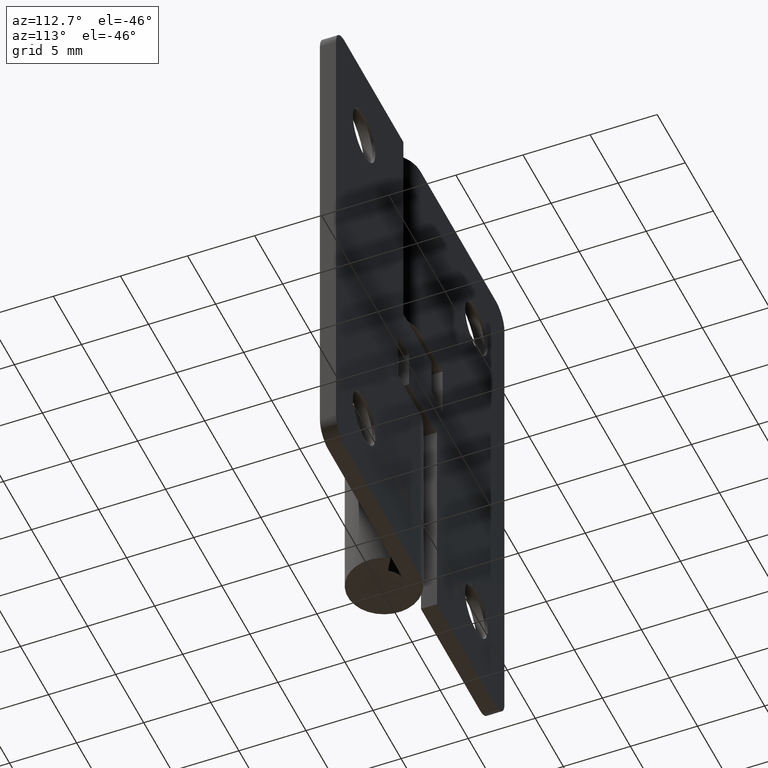
[diagram: clean part render]
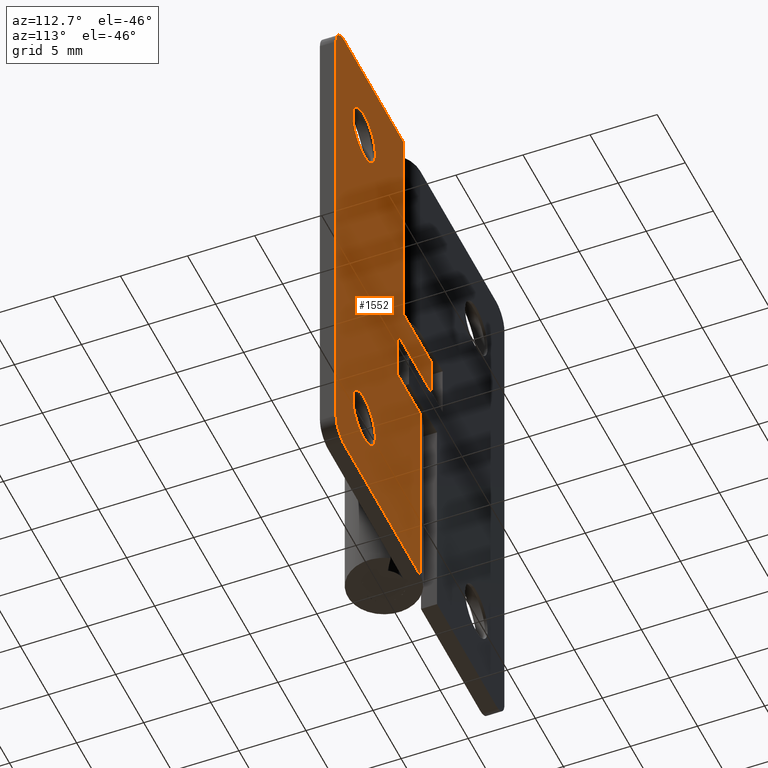
[diagram: same view with one face highlighted and labeled with its STEP entity id]
A machine part, auxiliary view. The second image highlights one B-rep face of the part: STEP entity #1552.
In plain terms, the highlighted face is a freeform B-spline surface patch.
Its self-contained STEP definition (entity closure, byte-faithful):
#476=CARTESIAN_POINT('',(8.013061622654163,2.699997000000000,34.228201412419573));
#477=VERTEX_POINT('',#476);
#483=CARTESIAN_POINT('',(10.0,2.699997000000000,36.000000000000007));
#484=VERTEX_POINT('',#483);
#485=CARTESIAN_POINT('',(8.013061622654163,2.699996999999999,34.228201412419573));
#486=CARTESIAN_POINT('',(8.216554138430254,2.699997000000000,36.0));
#487=CARTESIAN_POINT('',(10.0,2.699997000000000,36.000000000000007));
#495=(BOUNDED_CURVE()B_SPLINE_CURVE(2,(#485,#486,#487),.UNSPECIFIED.,.F.,.U.)B_SPLINE_CURVE_WITH_KNOTS((3,3),(0.269767770005124,0.500000000000000),.UNSPECIFIED.)CURVE()GEOMETRIC_REPRESENTATION_ITEM()RATIONAL_B_SPLINE_CURVE((0.957343708590816,0.730266164328807,1.0))REPRESENTATION_ITEM(''));
#496=EDGE_CURVE('',#477,#484,#495,.T.);
#498=CARTESIAN_POINT('',(11.996269596820250,2.699997000000000,34.122097079453710));
#499=VERTEX_POINT('',#498);
#500=CARTESIAN_POINT('',(10.0,2.699997000000000,36.000000000000007));
#501=CARTESIAN_POINT('',(11.881412133086229,2.699997000000000,36.000000000000014));
#502=CARTESIAN_POINT('',(11.996269596820248,2.699997000000001,34.122097079453710));
#510=(BOUNDED_CURVE()B_SPLINE_CURVE(2,(#500,#501,#502),.UNSPECIFIED.,.F.,.U.)B_SPLINE_CURVE_WITH_KNOTS((3,3),(0.500000000000000,0.739332962175587),.UNSPECIFIED.)CURVE()GEOMETRIC_REPRESENTATION_ITEM()RATIONAL_B_SPLINE_CURVE((1.0,0.719603993360936,0.976072041530934))REPRESENTATION_ITEM(''));
#511=EDGE_CURVE('',#484,#499,#510,.T.);
#610=CARTESIAN_POINT('',(10.0,2.699997000000000,32.0));
#611=VERTEX_POINT('',#610);
#612=CARTESIAN_POINT('',(11.996269596820252,2.699997000000000,34.122097079453724));
#613=CARTESIAN_POINT('',(12.000000000000004,2.699997000000000,34.061105526982260));
#614=CARTESIAN_POINT('',(12.0,2.699997000000000,34.0));
#615=CARTESIAN_POINT('',(12.0,2.699997000000000,31.999999999999996));
#616=CARTESIAN_POINT('',(10.0,2.699997000000000,32.0));
#624=(BOUNDED_CURVE()B_SPLINE_CURVE(2,(#612,#613,#614,#615,#616),.UNSPECIFIED.,.F.,.U.)B_SPLINE_CURVE_WITH_KNOTS((3,2,3),(0.739332962175586,0.750000000000000,1.0),.UNSPECIFIED.)CURVE()GEOMETRIC_REPRESENTATION_ITEM()RATIONAL_B_SPLINE_CURVE((0.976072041530933,0.987502787825611,1.0,0.707106781186548,1.0))REPRESENTATION_ITEM(''));
#625=EDGE_CURVE('',#499,#611,#624,.T.);
#627=CARTESIAN_POINT('',(10.0,2.699997000000000,32.0));
#628=CARTESIAN_POINT('',(8.0,2.699997000000000,31.999999999999996));
#629=CARTESIAN_POINT('',(8.0,2.699997000000000,34.0));
#630=CARTESIAN_POINT('',(8.0,2.699997000000000,34.114474553808158));
#631=CARTESIAN_POINT('',(8.013061622654163,2.699997000000000,34.228201412419565));
#639=(BOUNDED_CURVE()B_SPLINE_CURVE(2,(#627,#628,#629,#630,#631),.UNSPECIFIED.,.F.,.U.)B_SPLINE_CURVE_WITH_KNOTS((3,2,3),(0.0,0.250000000000000,0.269767770005124),.UNSPECIFIED.)CURVE()GEOMETRIC_REPRESENTATION_ITEM()RATIONAL_B_SPLINE_CURVE((1.0,0.707106781186548,1.0,0.976840616857741,0.957343708590816))REPRESENTATION_ITEM(''));
#640=EDGE_CURVE('',#611,#477,#639,.T.);
#808=CARTESIAN_POINT('',(8.013061622654163,2.699997000000000,6.228201412419471));
#809=VERTEX_POINT('',#808);
#815=CARTESIAN_POINT('',(10.0,2.699997000000000,7.999999999999900));
#816=VERTEX_POINT('',#815);
#817=CARTESIAN_POINT('',(8.013061622654163,2.699997000000000,6.228201412419471));
#818=CARTESIAN_POINT('',(8.216554138430256,2.699996999999999,7.999999999999899));
#819=CARTESIAN_POINT('',(10.0,2.699997000000000,7.999999999999900));
#827=(BOUNDED_CURVE()B_SPLINE_CURVE(2,(#817,#818,#819),.UNSPECIFIED.,.F.,.U.)B_SPLINE_CURVE_WITH_KNOTS((3,3),(0.269767770005124,0.500000000000000),.UNSPECIFIED.)CURVE()GEOMETRIC_REPRESENTATION_ITEM()RATIONAL_B_SPLINE_CURVE((0.957343708590815,0.730266164328807,1.0))REPRESENTATION_ITEM(''));
#828=EDGE_CURVE('',#809,#816,#827,.T.);
#830=CARTESIAN_POINT('',(11.996269596820250,2.699997000000000,6.122097079453615));
#831=VERTEX_POINT('',#830);
#832=CARTESIAN_POINT('',(10.0,2.699997000000000,7.999999999999900));
#833=CARTESIAN_POINT('',(11.881412133086229,2.699997000000000,7.999999999999900));
#834=CARTESIAN_POINT('',(11.996269596820248,2.699997000000001,6.122097079453616));
#842=(BOUNDED_CURVE()B_SPLINE_CURVE(2,(#832,#833,#834),.UNSPECIFIED.,.F.,.U.)B_SPLINE_CURVE_WITH_KNOTS((3,3),(0.500000000000000,0.739332962175587),.UNSPECIFIED.)CURVE()GEOMETRIC_REPRESENTATION_ITEM()RATIONAL_B_SPLINE_CURVE((1.0,0.719603993360936,0.976072041530934))REPRESENTATION_ITEM(''));
#843=EDGE_CURVE('',#816,#831,#842,.T.);
#942=CARTESIAN_POINT('',(10.0,2.699997000000000,3.999999999999901));
#943=VERTEX_POINT('',#942);
#944=CARTESIAN_POINT('',(11.996269596820250,2.699997000000000,6.122097079453615));
#945=CARTESIAN_POINT('',(12.000000000000002,2.699997000000001,6.061105526982156));
#946=CARTESIAN_POINT('',(12.0,2.699997000000000,5.999999999999901));
#947=CARTESIAN_POINT('',(12.0,2.699997000000000,3.999999999999901));
#948=CARTESIAN_POINT('',(10.0,2.699997000000000,3.999999999999901));
#956=(BOUNDED_CURVE()B_SPLINE_CURVE(2,(#944,#945,#946,#947,#948),.UNSPECIFIED.,.F.,.U.)B_SPLINE_CURVE_WITH_KNOTS((3,2,3),(0.739332962175586,0.750000000000000,1.0),.UNSPECIFIED.)CURVE()GEOMETRIC_REPRESENTATION_ITEM()RATIONAL_B_SPLINE_CURVE((0.976072041530933,0.987502787825611,1.0,0.707106781186548,1.0))REPRESENTATION_ITEM(''));
#957=EDGE_CURVE('',#831,#943,#956,.T.);
#959=CARTESIAN_POINT('',(10.0,2.699997000000000,3.999999999999901));
#960=CARTESIAN_POINT('',(8.0,2.699997000000000,3.999999999999901));
#961=CARTESIAN_POINT('',(8.0,2.699997000000000,5.999999999999901));
#962=CARTESIAN_POINT('',(8.0,2.699997000000001,6.114474553808059));
#963=CARTESIAN_POINT('',(8.013061622654163,2.699997000000001,6.228201412419471));
#971=(BOUNDED_CURVE()B_SPLINE_CURVE(2,(#959,#960,#961,#962,#963),.UNSPECIFIED.,.F.,.U.)B_SPLINE_CURVE_WITH_KNOTS((3,2,3),(0.0,0.250000000000000,0.269767770005124),.UNSPECIFIED.)CURVE()GEOMETRIC_REPRESENTATION_ITEM()RATIONAL_B_SPLINE_CURVE((1.0,0.707106781186548,1.0,0.976840616857741,0.957343708590815))REPRESENTATION_ITEM(''));
#972=EDGE_CURVE('',#943,#809,#971,.T.);
#1110=CARTESIAN_POINT('',(3.0,2.699997000000000,23.0));
#1111=VERTEX_POINT('',#1110);
#1112=CARTESIAN_POINT('',(-2.0,2.700001000000000,23.0));
#1113=VERTEX_POINT('',#1112);
#1114=CARTESIAN_POINT('',(3.0,2.699997000000000,23.0));
#1115=CARTESIAN_POINT('',(-2.0,2.700001000000000,23.0));
#1116=QUASI_UNIFORM_CURVE('',1,(#1114,#1115),.UNSPECIFIED.,.F.,.U.);
#1117=EDGE_CURVE('',#1111,#1113,#1116,.T.);
#1146=CARTESIAN_POINT('',(-2.0,2.700001000000000,20.0));
#1147=VERTEX_POINT('',#1146);
#1148=CARTESIAN_POINT('',(-2.0,2.700001000000000,23.0));
#1149=CARTESIAN_POINT('',(-2.0,2.700001000000000,20.0));
#1150=QUASI_UNIFORM_CURVE('',1,(#1148,#1149),.UNSPECIFIED.,.F.,.U.);
#1151=EDGE_CURVE('',#1113,#1147,#1150,.T.);
#1183=CARTESIAN_POINT('',(4.0,2.699997000000000,16.0));
#1184=VERTEX_POINT('',#1183);
#1190=CARTESIAN_POINT('',(-0.004024921244143,2.699997000000000,16.0));
#1191=VERTEX_POINT('',#1190);
#1192=CARTESIAN_POINT('',(-0.004024921244143,2.699997000000000,16.0));
#1193=CARTESIAN_POINT('',(4.0,2.699997000000000,16.0));
#1194=QUASI_UNIFORM_CURVE('',1,(#1192,#1193),.UNSPECIFIED.,.F.,.U.);
#1195=EDGE_CURVE('',#1191,#1184,#1194,.T.);
#1260=CARTESIAN_POINT('',(4.0,2.699997000000000,20.0));
#1261=VERTEX_POINT('',#1260);
#1262=CARTESIAN_POINT('',(4.0,2.699997000000000,20.0));
#1263=CARTESIAN_POINT('',(-2.0,2.700001000000000,20.0));
#1264=QUASI_UNIFORM_CURVE('',1,(#1262,#1263),.UNSPECIFIED.,.F.,.U.);
#1265=EDGE_CURVE('',#1261,#1147,#1264,.T.);
#1286=CARTESIAN_POINT('',(4.0,2.699997000000000,16.0));
#1287=CARTESIAN_POINT('',(4.0,2.699997000000000,20.0));
#1288=QUASI_UNIFORM_CURVE('',1,(#1286,#1287),.UNSPECIFIED.,.F.,.U.);
#1289=EDGE_CURVE('',#1184,#1261,#1288,.T.);
#1326=CARTESIAN_POINT('',(15.0,2.699997000000000,38.500000000000000));
#1327=VERTEX_POINT('',#1326);
#1333=CARTESIAN_POINT('',(13.500000000000000,2.699997000000000,40.0));
#1334=VERTEX_POINT('',#1333);
#1335=CARTESIAN_POINT('',(13.500000000000000,2.699997000000000,40.0));
#1336=CARTESIAN_POINT('',(14.999999999999995,2.699997000000000,39.999999999999993));
#1337=CARTESIAN_POINT('',(15.0,2.699997000000000,38.500000000000000));
#1345=(BOUNDED_CURVE()B_SPLINE_CURVE(2,(#1335,#1336,#1337),.UNSPECIFIED.,.F.,.U.)CURVE()GEOMETRIC_REPRESENTATION_ITEM()QUASI_UNIFORM_CURVE()RATIONAL_B_SPLINE_CURVE((1.0,0.707106781186548,1.0))REPRESENTATION_ITEM(''));
#1346=EDGE_CURVE('',#1334,#1327,#1345,.T.);
#1387=CARTESIAN_POINT('',(13.500000000000000,2.699997000000000,0.0));
#1388=VERTEX_POINT('',#1387);
#1394=CARTESIAN_POINT('',(15.0,2.699997000000000,1.499999999999946));
#1395=VERTEX_POINT('',#1394);
#1396=CARTESIAN_POINT('',(15.0,2.699997000000000,1.499999999999946));
#1397=CARTESIAN_POINT('',(14.999999999999995,2.699997000000000,-5.399327E-014));
#1398=CARTESIAN_POINT('',(13.500000000000000,2.699997000000000,0.0));
#1406=(BOUNDED_CURVE()B_SPLINE_CURVE(2,(#1396,#1397,#1398),.UNSPECIFIED.,.F.,.U.)CURVE()GEOMETRIC_REPRESENTATION_ITEM()QUASI_UNIFORM_CURVE()RATIONAL_B_SPLINE_CURVE((1.0,0.707106781186548,1.0))REPRESENTATION_ITEM(''));
#1407=EDGE_CURVE('',#1395,#1388,#1406,.T.);
#1422=CARTESIAN_POINT('',(-0.004024921244143,2.699997000000000,0.0));
#1423=VERTEX_POINT('',#1422);
#1424=CARTESIAN_POINT('',(13.500000000000000,2.699997000000000,0.0));
#1425=CARTESIAN_POINT('',(-0.004024921244143,2.699997000000000,0.0));
#1426=QUASI_UNIFORM_CURVE('',1,(#1424,#1425),.UNSPECIFIED.,.F.,.U.);
#1427=EDGE_CURVE('',#1388,#1423,#1426,.T.);
#1498=CARTESIAN_POINT('',(15.0,2.699997000000000,38.500000000000000));
#1499=CARTESIAN_POINT('',(15.0,2.699997000000000,1.499999999999946));
#1500=QUASI_UNIFORM_CURVE('',1,(#1498,#1499),.UNSPECIFIED.,.F.,.U.);
#1501=EDGE_CURVE('',#1327,#1395,#1500,.T.);
#1507=CARTESIAN_POINT('',(-2.849149967050703,2.699997000000000,41.997999922472239));
#1508=CARTESIAN_POINT('',(-2.849149967050703,2.699997000000000,-1.998000995355844));
#1509=CARTESIAN_POINT('',(15.849150423026240,2.699997000000000,41.997999922472239));
#1510=CARTESIAN_POINT('',(15.849150423026240,2.699997000000000,-1.998000995355844));
#1511=B_SPLINE_SURFACE_WITH_KNOTS('',1,1,((#1507,#1509),(#1508,#1510)),.UNSPECIFIED.,.F.,.F.,.U.,(2,2),(2,2),(0.0,43.996000917828077),(0.0,18.698300390076941),.UNSPECIFIED.);
#1512=ORIENTED_EDGE('',*,*,#1265,.T.);
#1513=ORIENTED_EDGE('',*,*,#1151,.F.);
#1514=ORIENTED_EDGE('',*,*,#1117,.F.);
#1515=CARTESIAN_POINT('',(3.0,2.699997000000000,40.0));
#1516=VERTEX_POINT('',#1515);
#1517=CARTESIAN_POINT('',(3.0,2.699997000000000,23.0));
#1518=CARTESIAN_POINT('',(3.0,2.699997000000000,40.0));
#1519=QUASI_UNIFORM_CURVE('',1,(#1517,#1518),.UNSPECIFIED.,.F.,.U.);
#1520=EDGE_CURVE('',#1111,#1516,#1519,.T.);
#1521=ORIENTED_EDGE('',*,*,#1520,.T.);
#1522=CARTESIAN_POINT('',(13.500000000000000,2.699997000000000,40.0));
#1523=CARTESIAN_POINT('',(3.0,2.699997000000000,40.0));
#1524=QUASI_UNIFORM_CURVE('',1,(#1522,#1523),.UNSPECIFIED.,.F.,.U.);
#1525=EDGE_CURVE('',#1334,#1516,#1524,.T.);
#1526=ORIENTED_EDGE('',*,*,#1525,.F.);
#1527=ORIENTED_EDGE('',*,*,#1346,.T.);
#1528=ORIENTED_EDGE('',*,*,#1501,.T.);
#1529=ORIENTED_EDGE('',*,*,#1407,.T.);
#1530=ORIENTED_EDGE('',*,*,#1427,.T.);
#1531=CARTESIAN_POINT('',(-0.004024921244143,2.699997000000000,16.0));
#1532=CARTESIAN_POINT('',(-0.004024921244143,2.699997000000000,0.0));
#1533=QUASI_UNIFORM_CURVE('',1,(#1531,#1532),.UNSPECIFIED.,.F.,.U.);
#1534=EDGE_CURVE('',#1191,#1423,#1533,.T.);
#1535=ORIENTED_EDGE('',*,*,#1534,.F.);
#1536=ORIENTED_EDGE('',*,*,#1195,.T.);
#1537=ORIENTED_EDGE('',*,*,#1289,.T.);
#1538=EDGE_LOOP('',(#1512,#1513,#1514,#1521,#1526,#1527,#1528,#1529,#1530,#1535,#1536,#1537));
#1539=FACE_OUTER_BOUND('',#1538,.T.);
#1540=ORIENTED_EDGE('',*,*,#843,.F.);
#1541=ORIENTED_EDGE('',*,*,#828,.F.);
#1542=ORIENTED_EDGE('',*,*,#972,.F.);
#1543=ORIENTED_EDGE('',*,*,#957,.F.);
#1544=EDGE_LOOP('',(#1540,#1541,#1542,#1543));
#1545=FACE_BOUND('',#1544,.T.);
#1546=ORIENTED_EDGE('',*,*,#511,.F.);
#1547=ORIENTED_EDGE('',*,*,#496,.F.);
#1548=ORIENTED_EDGE('',*,*,#640,.F.);
#1549=ORIENTED_EDGE('',*,*,#625,.F.);
#1550=EDGE_LOOP('',(#1546,#1547,#1548,#1549));
#1551=FACE_BOUND('',#1550,.T.);
#1552=ADVANCED_FACE('',(#1539,#1545,#1551),#1511,.F.);